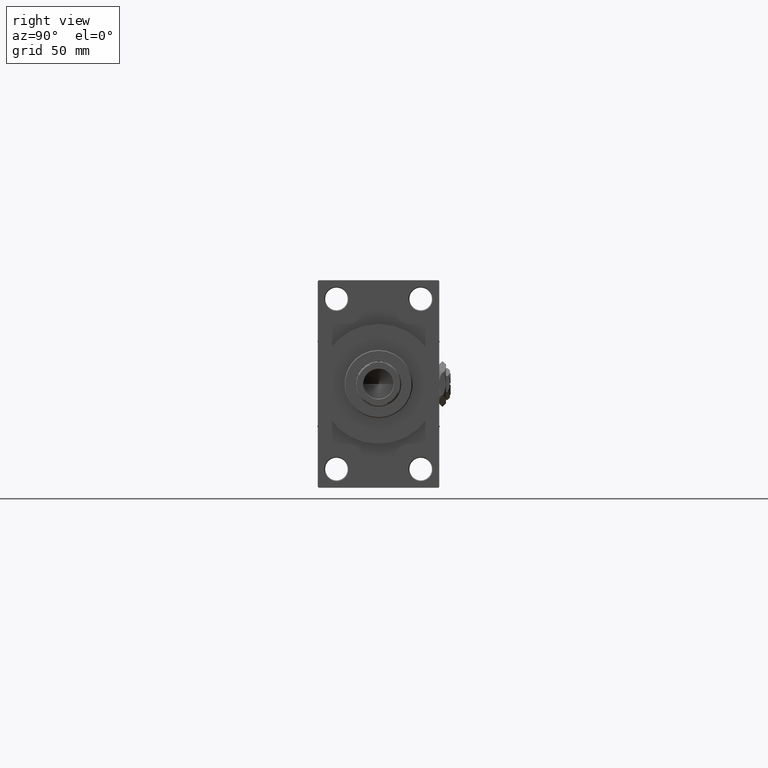
[diagram: clean part render]
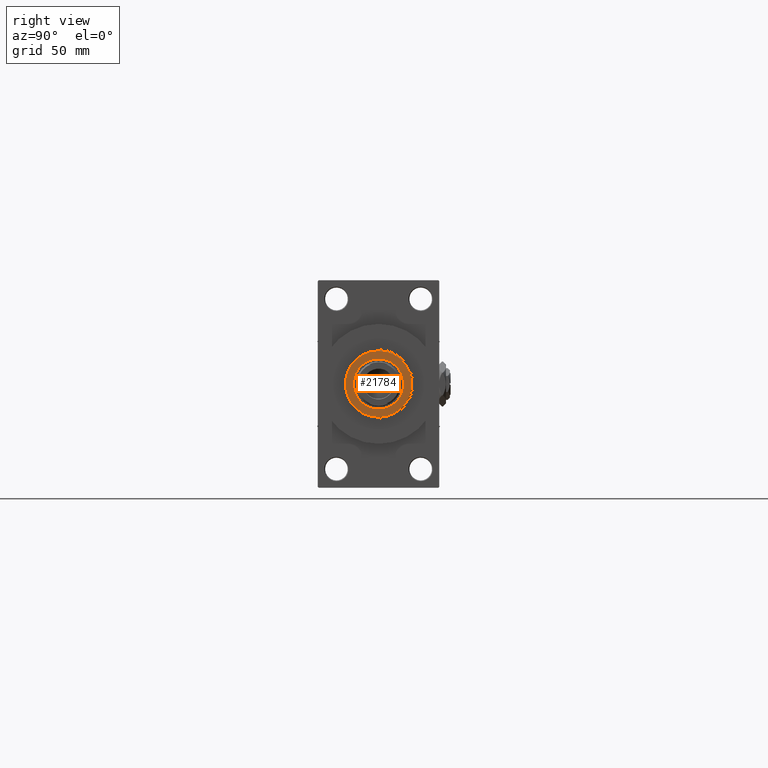
[diagram: same view with one face highlighted and labeled with its STEP entity id]
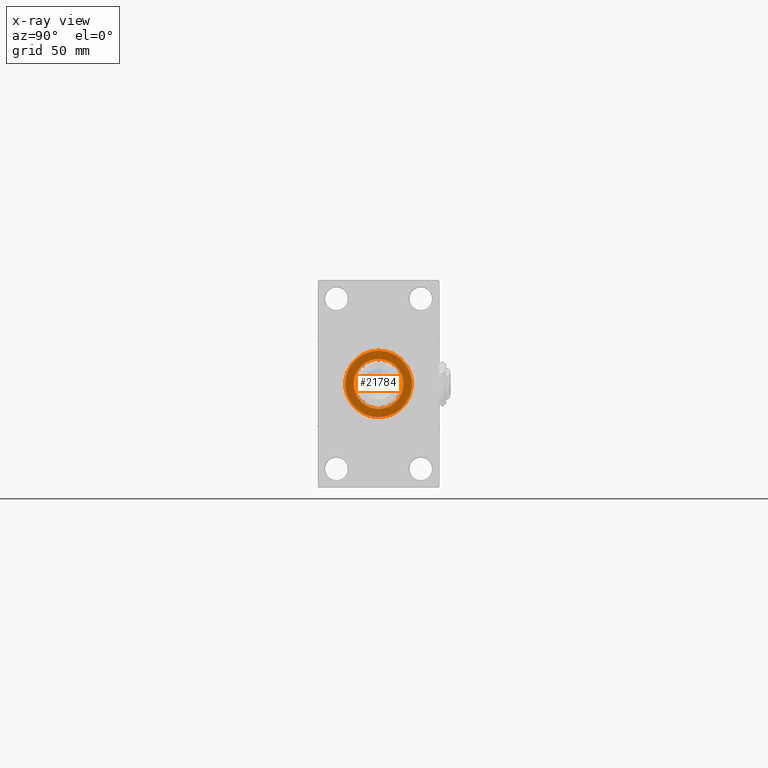
[diagram: x-ray of the same camera — body ghosted, the highlighted face saturated]
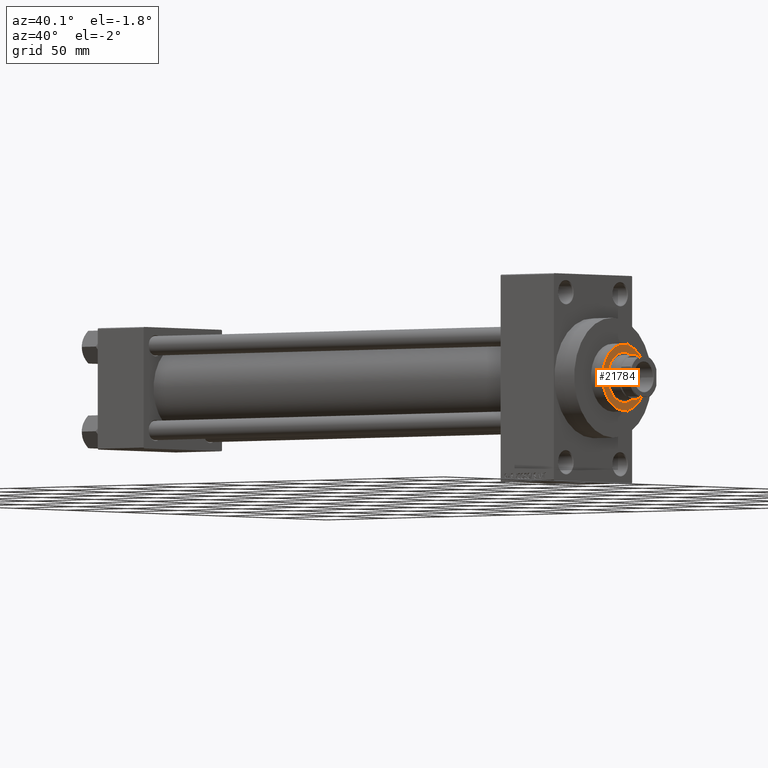
[diagram: same view with one face highlighted and labeled with its STEP entity id]
A machine part, right view. The second image highlights one B-rep face of the part: STEP entity #21784.
The next image is the same camera in x-ray: the body ghosted, the highlighted face saturated — about 0% of this face is hidden behind the body in this view.
A second angle (auxiliary view) of the same face is appended — the face is thin or edge-on in the first view.
In plain terms, the highlighted planar face has unit normal (1, -0, -0).
Its self-contained STEP definition (entity closure, byte-faithful):
#68 = FACE_BOUND ( 'NONE', #5566, .T. ) ;
#955 = ORIENTED_EDGE ( 'NONE', *, *, #5632, .T. ) ;
#1102 = ORIENTED_EDGE ( 'NONE', *, *, #32396, .F. ) ;
#2911 = DIRECTION ( 'NONE',  ( 0.000000000000000000, 0.000000000000000000, 1.000000000000000000 ) ) ;
#3841 = CARTESIAN_POINT ( 'NONE',  ( 20.50000000000000355, 2.541142108230758269E-15, 52.25999999999999801 ) ) ;
#4459 = DIRECTION ( 'NONE',  ( 0.000000000000000000, 0.000000000000000000, 1.000000000000000000 ) ) ;
#4742 = CARTESIAN_POINT ( 'NONE',  ( 0.000000000000000000, 0.000000000000000000, 52.25999999999999801 ) ) ;
#5566 = EDGE_LOOP ( 'NONE', ( #1102, #41571 ) ) ;
#5632 = EDGE_CURVE ( 'NONE', #35793, #48288, #23247, .T. ) ;
#7046 = CIRCLE ( 'NONE', #9421, 15.50000000000000000 ) ;
#8700 = DIRECTION ( 'NONE',  ( 0.000000000000000000, 0.000000000000000000, 1.000000000000000000 ) ) ;
#9421 = AXIS2_PLACEMENT_3D ( 'NONE', #47793, #2911, #48032 ) ;
#10367 = AXIS2_PLACEMENT_3D ( 'NONE', #35122, #4459, #46329 ) ;
#11720 = DIRECTION ( 'NONE',  ( 0.000000000000000000, 0.000000000000000000, 1.000000000000000000 ) ) ;
#15993 = EDGE_CURVE ( 'NONE', #48288, #35793, #28137, .T. ) ;
#16438 = CARTESIAN_POINT ( 'NONE',  ( 0.000000000000000000, 0.000000000000000000, 52.25999999999999801 ) ) ;
#18769 = EDGE_LOOP ( 'NONE', ( #37221, #955 ) ) ;
#18771 = PLANE ( 'NONE',  #46484 ) ;
#21784 = ADVANCED_FACE ( 'NONE', ( #68, #48931 ), #18771, .T. ) ;
#21814 = AXIS2_PLACEMENT_3D ( 'NONE', #16438, #8700, #39106 ) ;
#22738 = CARTESIAN_POINT ( 'NONE',  ( 15.50000000000000000, 0.000000000000000000, 52.25999999999999801 ) ) ;
#23247 = CIRCLE ( 'NONE', #10367, 20.50000000000000355 ) ;
#28137 = CIRCLE ( 'NONE', #37657, 20.50000000000000355 ) ;
#29990 = CARTESIAN_POINT ( 'NONE',  ( 0.000000000000000000, 0.000000000000000000, 52.25999999999999801 ) ) ;
#32396 = EDGE_CURVE ( 'NONE', #34823, #48458, #7046, .T. ) ;
#34823 = VERTEX_POINT ( 'NONE', #22738 ) ;
#35122 = CARTESIAN_POINT ( 'NONE',  ( 0.000000000000000000, 0.000000000000000000, 52.25999999999999801 ) ) ;
#35644 = DIRECTION ( 'NONE',  ( 1.000000000000000000, 0.000000000000000000, 0.000000000000000000 ) ) ;
#35793 = VERTEX_POINT ( 'NONE', #3841 ) ;
#36251 = CARTESIAN_POINT ( 'NONE',  ( -20.50000000000000355, 0.000000000000000000, 52.25999999999999801 ) ) ;
#37220 = CARTESIAN_POINT ( 'NONE',  ( -15.50000000000000000, 1.898202538678397557E-15, 52.25999999999999801 ) ) ;
#37221 = ORIENTED_EDGE ( 'NONE', *, *, #15993, .T. ) ;
#37657 = AXIS2_PLACEMENT_3D ( 'NONE', #4742, #11720, #35644 ) ;
#39106 = DIRECTION ( 'NONE',  ( 1.000000000000000000, 0.000000000000000000, 0.000000000000000000 ) ) ;
#39337 = CIRCLE ( 'NONE', #21814, 15.50000000000000000 ) ;
#41571 = ORIENTED_EDGE ( 'NONE', *, *, #42837, .F. ) ;
#42837 = EDGE_CURVE ( 'NONE', #48458, #34823, #39337, .T. ) ;
#45187 = DIRECTION ( 'NONE',  ( 1.000000000000000000, 0.000000000000000000, -0.000000000000000000 ) ) ;
#45677 = DIRECTION ( 'NONE',  ( 0.000000000000000000, 0.000000000000000000, 1.000000000000000000 ) ) ;
#46329 = DIRECTION ( 'NONE',  ( 1.000000000000000000, 0.000000000000000000, 0.000000000000000000 ) ) ;
#46484 = AXIS2_PLACEMENT_3D ( 'NONE', #29990, #45677, #45187 ) ;
#47793 = CARTESIAN_POINT ( 'NONE',  ( 0.000000000000000000, 0.000000000000000000, 52.25999999999999801 ) ) ;
#48032 = DIRECTION ( 'NONE',  ( 1.000000000000000000, 0.000000000000000000, 0.000000000000000000 ) ) ;
#48288 = VERTEX_POINT ( 'NONE', #36251 ) ;
#48458 = VERTEX_POINT ( 'NONE', #37220 ) ;
#48931 = FACE_OUTER_BOUND ( 'NONE', #18769, .T. ) ;